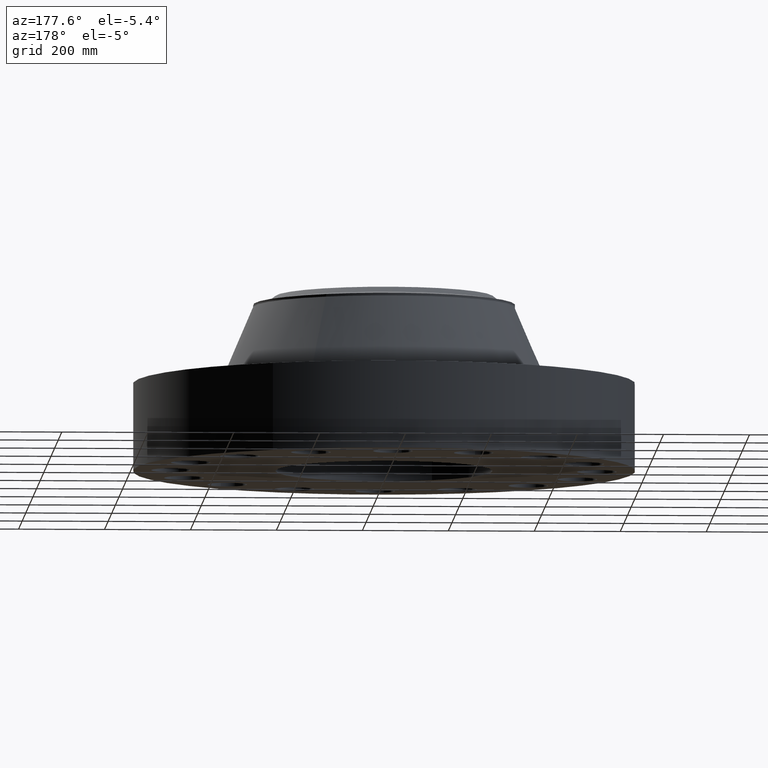
[diagram: clean part render]
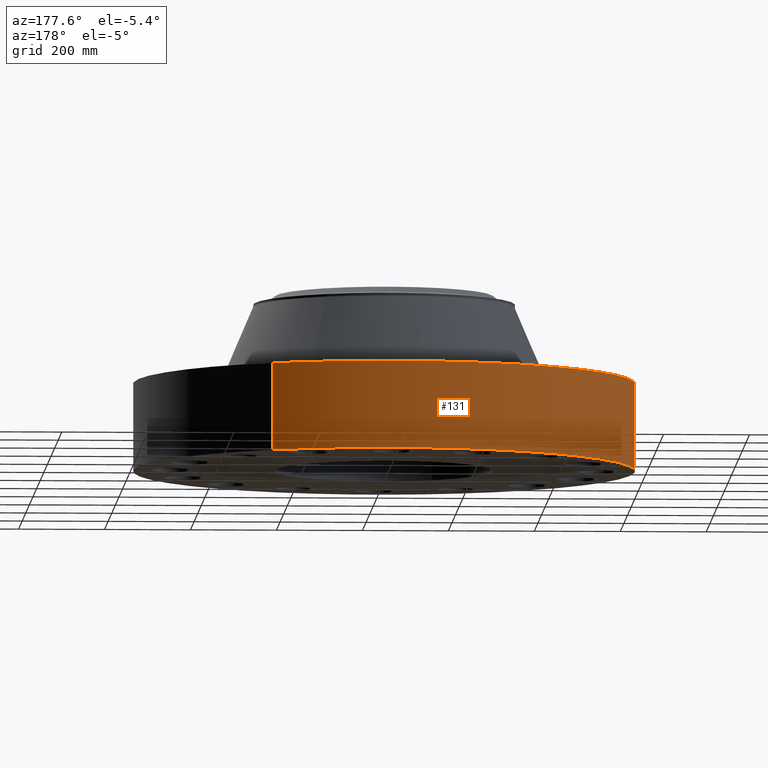
[diagram: same view with one face highlighted and labeled with its STEP entity id]
A machine part, auxiliary view. The second image highlights one B-rep face of the part: STEP entity #131.
In plain terms, the highlighted cylindrical surface (partial cylindrical patch) has radius 584.2 mm, axis along (0, 0, -1).
Its self-contained STEP definition (entity closure, byte-faithful):
#95=AXIS2_PLACEMENT_3D('Cylinder Axis2P3D',#92,#93,#94) ;
#99=AXIS2_PLACEMENT_3D('Circle Axis2P3D',#97,#98,$) ;
#115=AXIS2_PLACEMENT_3D('Circle Axis2P3D',#113,#114,$) ;
#92=CARTESIAN_POINT('Axis2P3D Location',(0.,0.,8.00000000003)) ;
#97=CARTESIAN_POINT('Axis2P3D Location',(0.,0.,2.23792987641E-015)) ;
#101=CARTESIAN_POINT('Vertex',(-11.0267873879,-20.1843989236,2.23792987641E-015)) ;
#103=CARTESIAN_POINT('Vertex',(11.0267873879,20.1843989236,2.23792987641E-015)) ;
#106=CARTESIAN_POINT('Line Origine',(-11.0267873879,-20.1843989236,4.00000000002)) ;
#110=CARTESIAN_POINT('Vertex',(-11.0267873879,-20.1843989236,8.00000000003)) ;
#113=CARTESIAN_POINT('Axis2P3D Location',(0.,0.,8.00000000003)) ;
#117=CARTESIAN_POINT('Vertex',(11.0267873879,20.1843989236,8.00000000003)) ;
#120=CARTESIAN_POINT('Line Origine',(11.0267873879,20.1843989236,4.00000000002)) ;
#93=DIRECTION('Axis2P3D Direction',(0.,0.,-0.0393700787402)) ;
#94=DIRECTION('Axis2P3D XDirection',(0.0188750212049,0.0345504945626,0.)) ;
#98=DIRECTION('Axis2P3D Direction',(0.,0.,-0.0393700787402)) ;
#107=DIRECTION('Vector Direction',(0.,0.,-0.0393700787402)) ;
#114=DIRECTION('Axis2P3D Direction',(0.,0.,-0.0393700787402)) ;
#121=DIRECTION('Vector Direction',(0.,0.,-0.0393700787402)) ;
#108=VECTOR('Line Direction',#107,0.0393700787402) ;
#122=VECTOR('Line Direction',#121,0.0393700787402) ;
#126=ORIENTED_EDGE('',*,*,#105,.F.) ;
#127=ORIENTED_EDGE('',*,*,#112,.T.) ;
#128=ORIENTED_EDGE('',*,*,#119,.T.) ;
#129=ORIENTED_EDGE('',*,*,#124,.F.) ;
#131=ADVANCED_FACE('PartBody',(#130),#96,.T.) ;
#100=CIRCLE('generated circle',#99,23.0000000001) ;
#116=CIRCLE('generated circle',#115,23.0000000001) ;
#96=CYLINDRICAL_SURFACE('generated cylinder',#95,23.0000000001) ;
#105=EDGE_CURVE('',#102,#104,#100,.T.) ;
#112=EDGE_CURVE('',#102,#111,#109,.F.) ;
#119=EDGE_CURVE('',#111,#118,#116,.T.) ;
#124=EDGE_CURVE('',#104,#118,#123,.F.) ;
#125=EDGE_LOOP('',(#126,#127,#128,#129)) ;
#130=FACE_OUTER_BOUND('',#125,.T.) ;
#109=LINE('Line',#106,#108) ;
#123=LINE('Line',#120,#122) ;
#102=VERTEX_POINT('',#101) ;
#104=VERTEX_POINT('',#103) ;
#111=VERTEX_POINT('',#110) ;
#118=VERTEX_POINT('',#117) ;